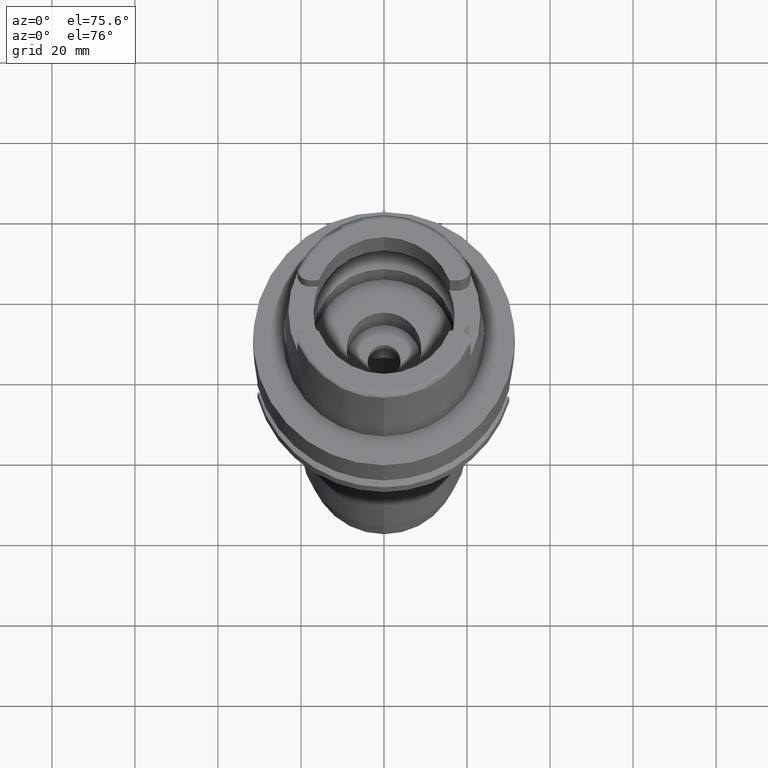
[diagram: clean part render]
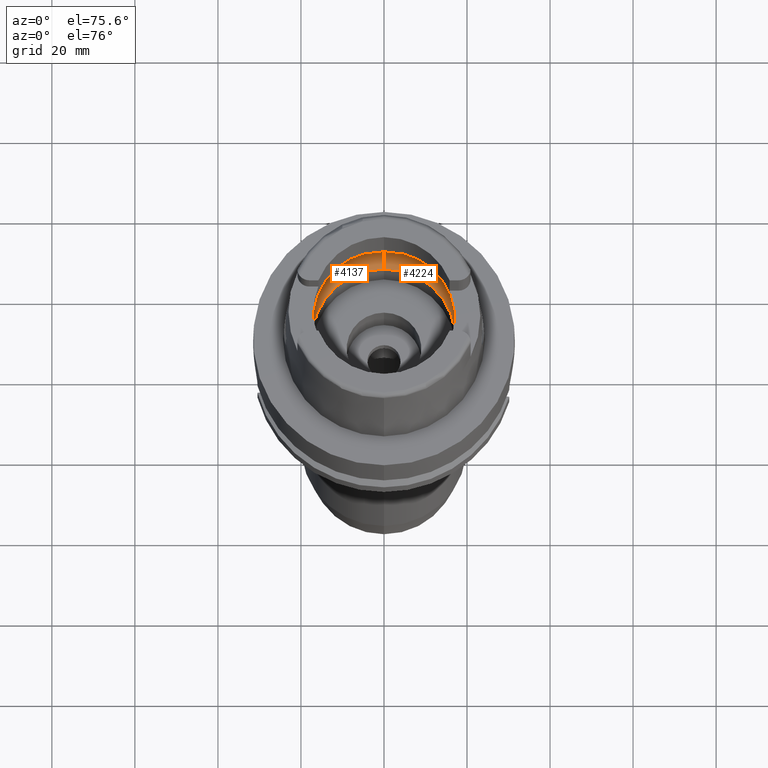
[diagram: same view with one multi-face feature highlighted, each face labeled with its STEP entity id]
A machine part, auxiliary view. The highlighted faces form ONE feature: a constant-radius fillet chain: 2 tangent blend faces with common blend radius 8 mm. The faces share edges in the B-rep.
Their STEP definitions:
[1] entity #4224 (Torus):
#2089=CARTESIAN_POINT('',(0.E0,-1.2E1,6.186348233825E0));
#2090=DIRECTION('',(-1.E0,0.E0,0.E0));
#2091=DIRECTION('',(0.E0,-6.5625E-1,-7.545435292281E-1));
#2092=AXIS2_PLACEMENT_3D('',#2089,#2090,#2091);
#2151=CARTESIAN_POINT('',(1.984575864666E1,-2.479085262491E0,6.186348233825E0));
#2178=CARTESIAN_POINT('',(1.984575864666E1,2.479085262491E0,6.186348233825E0));
#2197=CARTESIAN_POINT('',(1.994501428476E1,0.E0,5.25E0));
#2198=CARTESIAN_POINT('',(1.994501428476E1,-3.022957154465E-1,5.25E0));
#2199=CARTESIAN_POINT('',(1.994018609693E1,-9.060474356404E-1,
5.323296439589E0));
#2200=CARTESIAN_POINT('',(1.991331550025E1,-1.759139202252E0,5.647061182125E0));
#2201=CARTESIAN_POINT('',(1.987369610543E1,-2.255438229266E0,5.989294685574E0));
#2202=CARTESIAN_POINT('',(1.984575864666E1,-2.479085262491E0,6.186348233825E0));
#2207=CARTESIAN_POINT('',(0.E0,0.E0,6.186348233825E0));
#2208=DIRECTION('',(0.E0,0.E0,-1.E0));
#2209=DIRECTION('',(9.922879323328E-1,-1.239542631245E-1,0.E0));
#2210=AXIS2_PLACEMENT_3D('',#2207,#2208,#2209);
#2215=CARTESIAN_POINT('',(0.E0,0.E0,1.500000000001E-1));
#2216=DIRECTION('',(0.E0,0.E0,1.E0));
#2217=DIRECTION('',(0.E0,-1.E0,0.E0));
#2218=AXIS2_PLACEMENT_3D('',#2215,#2216,#2217);
#2223=CARTESIAN_POINT('',(0.E0,1.2E1,6.186348233825E0));
#2224=DIRECTION('',(1.E0,0.E0,0.E0));
#2225=DIRECTION('',(0.E0,6.5625E-1,-7.545435292281E-1));
#2226=AXIS2_PLACEMENT_3D('',#2223,#2224,#2225);
#2231=CARTESIAN_POINT('',(0.E0,0.E0,6.186348233825E0));
#2232=DIRECTION('',(0.E0,0.E0,-1.E0));
#2233=DIRECTION('',(0.E0,1.E0,0.E0));
#2234=AXIS2_PLACEMENT_3D('',#2231,#2232,#2233);
#2239=CARTESIAN_POINT('',(1.984575864666E1,2.479085262491E0,6.186348233825E0));
#2240=CARTESIAN_POINT('',(1.987369683552E1,2.255432384732E0,5.989289536004E0));
#2241=CARTESIAN_POINT('',(1.991331633330E1,1.759123026949E0,5.647052493715E0));
#2242=CARTESIAN_POINT('',(1.994018619685E1,9.060366292765E-1,5.323294636829E0));
#2243=CARTESIAN_POINT('',(1.994501428476E1,3.022911403854E-1,5.25E0));
#2244=CARTESIAN_POINT('',(1.994501428476E1,0.E0,5.25E0));
#2400=CARTESIAN_POINT('',(0.E0,-2.E1,6.186348233825E0));
#2401=VERTEX_POINT('',#2400);
#2402=CARTESIAN_POINT('',(0.E0,2.E1,6.186348233825E0));
#2403=VERTEX_POINT('',#2402);
#2408=VERTEX_POINT('',#2151);
#2410=VERTEX_POINT('',#2197);
#2411=VERTEX_POINT('',#2178);
#2412=CARTESIAN_POINT('',(0.E0,1.725E1,1.500000000001E-1));
#2413=VERTEX_POINT('',#2412);
#2414=CARTESIAN_POINT('',(0.E0,-1.725E1,1.500000000001E-1));
#2415=VERTEX_POINT('',#2414);
#4209=CARTESIAN_POINT('',(0.E0,0.E0,6.186348233825E0));
#4210=DIRECTION('',(0.E0,0.E0,1.E0));
#4211=DIRECTION('',(0.E0,1.E0,0.E0));
#4212=AXIS2_PLACEMENT_3D('',#4209,#4210,#4211);
#4213=TOROIDAL_SURFACE('',#4212,1.2E1,8.E0);
#4214=ORIENTED_EDGE('',*,*,#4199,.T.);
#4215=ORIENTED_EDGE('',*,*,#4188,.T.);
#4216=ORIENTED_EDGE('',*,*,#4131,.F.);
#4217=ORIENTED_EDGE('',*,*,#4096,.T.);
#4218=ORIENTED_EDGE('',*,*,#4128,.T.);
#4219=ORIENTED_EDGE('',*,*,#4182,.T.);
#4221=ORIENTED_EDGE('',*,*,#4220,.T.);
#4222=EDGE_LOOP('',(#4214,#4215,#4216,#4217,#4218,#4219,#4221));
#4223=FACE_OUTER_BOUND('',#4222,.F.);
#2093=CIRCLE('',#2092,8.E0);
#2203=B_SPLINE_CURVE_WITH_KNOTS('',3,(#2197,#2198,#2199,#2200,#2201,#2202),
.UNSPECIFIED.,.F.,.F.,(4,1,1,4),(0.E0,3.333333333333E-1,6.666666666667E-1,1.E0),
.UNSPECIFIED.);
#2211=CIRCLE('',#2210,2.E1);
#2219=CIRCLE('',#2218,1.725E1);
#2227=CIRCLE('',#2226,8.E0);
#2235=CIRCLE('',#2234,2.E1);
#2245=B_SPLINE_CURVE_WITH_KNOTS('',3,(#2239,#2240,#2241,#2242,#2243,#2244),
.UNSPECIFIED.,.F.,.F.,(4,1,1,4),(0.E0,3.333333333333E-1,6.666666666667E-1,1.E0),
.UNSPECIFIED.);
#4096=EDGE_CURVE('',#2415,#2413,#2219,.T.);
#4128=EDGE_CURVE('',#2413,#2403,#2227,.T.);
#4131=EDGE_CURVE('',#2415,#2401,#2093,.T.);
#4182=EDGE_CURVE('',#2403,#2411,#2235,.T.);
#4188=EDGE_CURVE('',#2408,#2401,#2211,.T.);
#4199=EDGE_CURVE('',#2410,#2408,#2203,.T.);
#4220=EDGE_CURVE('',#2411,#2410,#2245,.T.);
#4224=ADVANCED_FACE('',(#4223),#4213,.F.);
[2] entity #4137 (Torus):
#2053=CARTESIAN_POINT('',(-1.984575864666E1,-2.479085262491E0,
6.186348233825E0));
#2054=CARTESIAN_POINT('',(-1.987369637762E1,-2.255436050342E0,
5.989292765742E0));
#2055=CARTESIAN_POINT('',(-1.991331581871E1,-1.759133185383E0,
5.647057889337E0));
#2056=CARTESIAN_POINT('',(-1.994018615095E1,-9.060425565455E-1,
5.323295534197E0));
#2057=CARTESIAN_POINT('',(-1.994501428476E1,-3.022936309386E-1,5.25E0));
#2058=CARTESIAN_POINT('',(-1.994501428476E1,0.E0,5.25E0));
#2063=CARTESIAN_POINT('',(-1.994501428476E1,0.E0,5.25E0));
#2064=CARTESIAN_POINT('',(-1.994501428476E1,3.022931930043E-1,5.25E0));
#2065=CARTESIAN_POINT('',(-1.994018614423E1,9.060414364937E-1,
5.323295523152E0));
#2066=CARTESIAN_POINT('',(-1.991331601589E1,1.759129035713E0,5.647055777419E0));
#2067=CARTESIAN_POINT('',(-1.987369656375E1,2.255434560347E0,5.989291452920E0));
#2068=CARTESIAN_POINT('',(-1.984575864666E1,2.479085262491E0,6.186348233825E0));
#2073=CARTESIAN_POINT('',(0.E0,0.E0,6.186348233825E0));
#2074=DIRECTION('',(0.E0,0.E0,-1.E0));
#2075=DIRECTION('',(-9.922879323328E-1,1.239542631245E-1,0.E0));
#2076=AXIS2_PLACEMENT_3D('',#2073,#2074,#2075);
#2081=CARTESIAN_POINT('',(0.E0,0.E0,1.500000000001E-1));
#2082=DIRECTION('',(0.E0,0.E0,1.E0));
#2083=DIRECTION('',(0.E0,1.E0,0.E0));
#2084=AXIS2_PLACEMENT_3D('',#2081,#2082,#2083);
#2089=CARTESIAN_POINT('',(0.E0,-1.2E1,6.186348233825E0));
#2090=DIRECTION('',(-1.E0,0.E0,0.E0));
#2091=DIRECTION('',(0.E0,-6.5625E-1,-7.545435292281E-1));
#2092=AXIS2_PLACEMENT_3D('',#2089,#2090,#2091);
#2097=CARTESIAN_POINT('',(0.E0,0.E0,6.186348233825E0));
#2098=DIRECTION('',(0.E0,0.E0,-1.E0));
#2099=DIRECTION('',(0.E0,-1.E0,0.E0));
#2100=AXIS2_PLACEMENT_3D('',#2097,#2098,#2099);
#2123=CARTESIAN_POINT('',(-1.984575864666E1,-2.479085262491E0,
6.186348233825E0));
#2223=CARTESIAN_POINT('',(0.E0,1.2E1,6.186348233825E0));
#2224=DIRECTION('',(1.E0,0.E0,0.E0));
#2225=DIRECTION('',(0.E0,6.5625E-1,-7.545435292281E-1));
#2226=AXIS2_PLACEMENT_3D('',#2223,#2224,#2225);
#2399=VERTEX_POINT('',#2123);
#2400=CARTESIAN_POINT('',(0.E0,-2.E1,6.186348233825E0));
#2401=VERTEX_POINT('',#2400);
#2402=CARTESIAN_POINT('',(0.E0,2.E1,6.186348233825E0));
#2403=VERTEX_POINT('',#2402);
#2404=CARTESIAN_POINT('',(-1.984575864666E1,2.479085262490E0,6.186348233825E0));
#2405=VERTEX_POINT('',#2404);
#2406=CARTESIAN_POINT('',(-1.994501428476E1,0.E0,5.25E0));
#2407=VERTEX_POINT('',#2406);
#2412=CARTESIAN_POINT('',(0.E0,1.725E1,1.500000000001E-1));
#2413=VERTEX_POINT('',#2412);
#2414=CARTESIAN_POINT('',(0.E0,-1.725E1,1.500000000001E-1));
#2415=VERTEX_POINT('',#2414);
#4117=CARTESIAN_POINT('',(0.E0,0.E0,6.186348233825E0));
#4118=DIRECTION('',(0.E0,0.E0,1.E0));
#4119=DIRECTION('',(0.E0,1.E0,0.E0));
#4120=AXIS2_PLACEMENT_3D('',#4117,#4118,#4119);
#4121=TOROIDAL_SURFACE('',#4120,1.2E1,8.E0);
#4123=ORIENTED_EDGE('',*,*,#4122,.T.);
#4125=ORIENTED_EDGE('',*,*,#4124,.T.);
#4127=ORIENTED_EDGE('',*,*,#4126,.T.);
#4129=ORIENTED_EDGE('',*,*,#4128,.F.);
#4130=ORIENTED_EDGE('',*,*,#4112,.T.);
#4132=ORIENTED_EDGE('',*,*,#4131,.T.);
#4134=ORIENTED_EDGE('',*,*,#4133,.T.);
#4135=EDGE_LOOP('',(#4123,#4125,#4127,#4129,#4130,#4132,#4134));
#4136=FACE_OUTER_BOUND('',#4135,.F.);
#2059=B_SPLINE_CURVE_WITH_KNOTS('',3,(#2053,#2054,#2055,#2056,#2057,#2058),
.UNSPECIFIED.,.F.,.F.,(4,1,1,4),(0.E0,3.333333333333E-1,6.666666666667E-1,1.E0),
.UNSPECIFIED.);
#2069=B_SPLINE_CURVE_WITH_KNOTS('',3,(#2063,#2064,#2065,#2066,#2067,#2068),
.UNSPECIFIED.,.F.,.F.,(4,1,1,4),(0.E0,3.333333333333E-1,6.666666666667E-1,1.E0),
.UNSPECIFIED.);
#2077=CIRCLE('',#2076,2.E1);
#2085=CIRCLE('',#2084,1.725E1);
#2093=CIRCLE('',#2092,8.E0);
#2101=CIRCLE('',#2100,2.E1);
#2227=CIRCLE('',#2226,8.E0);
#4112=EDGE_CURVE('',#2413,#2415,#2085,.T.);
#4122=EDGE_CURVE('',#2399,#2407,#2059,.T.);
#4124=EDGE_CURVE('',#2407,#2405,#2069,.T.);
#4126=EDGE_CURVE('',#2405,#2403,#2077,.T.);
#4128=EDGE_CURVE('',#2413,#2403,#2227,.T.);
#4131=EDGE_CURVE('',#2415,#2401,#2093,.T.);
#4133=EDGE_CURVE('',#2401,#2399,#2101,.T.);
#4137=ADVANCED_FACE('',(#4136),#4121,.F.);